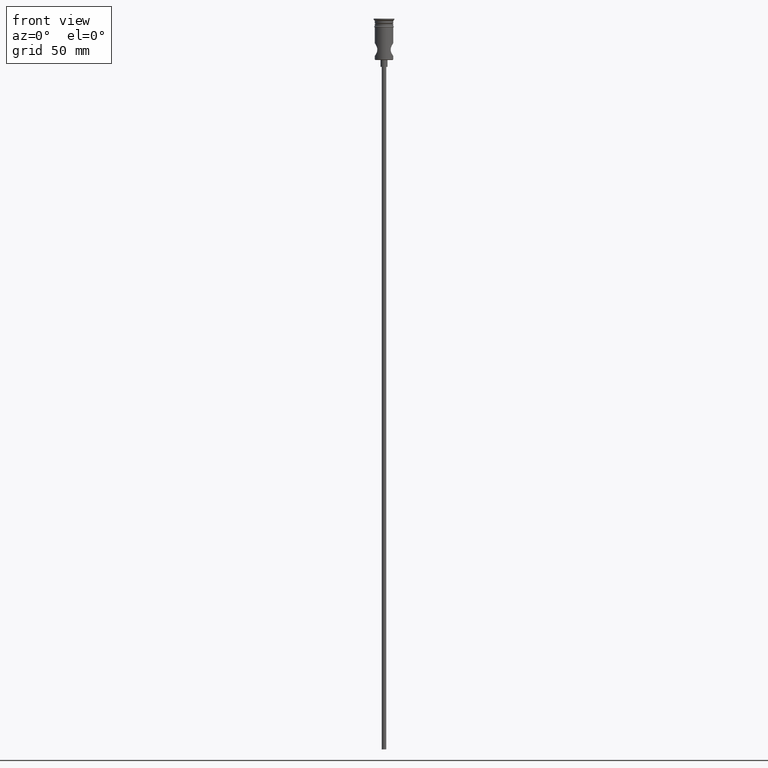
[diagram: clean part render]
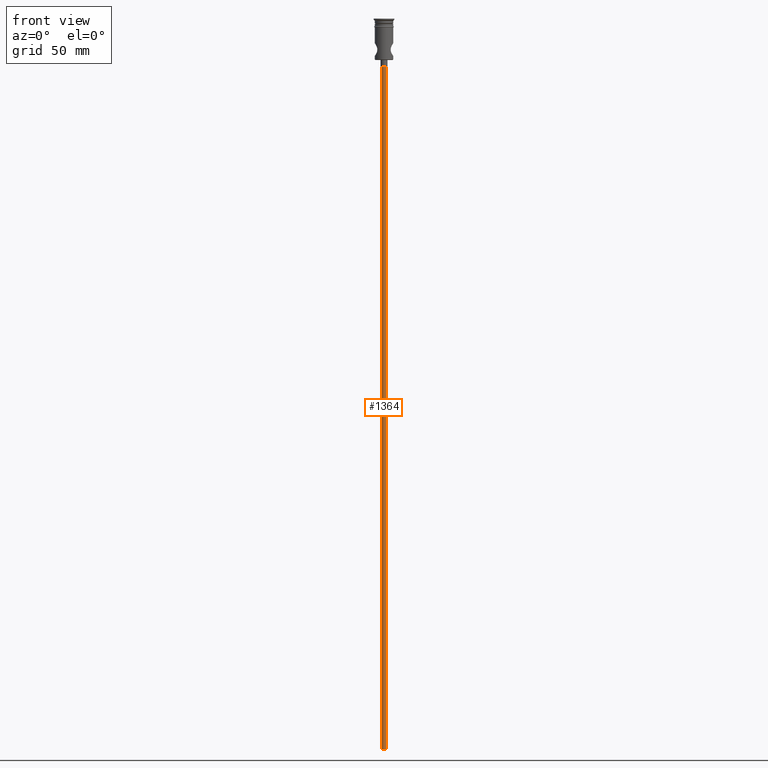
[diagram: same view with one face highlighted and labeled with its STEP entity id]
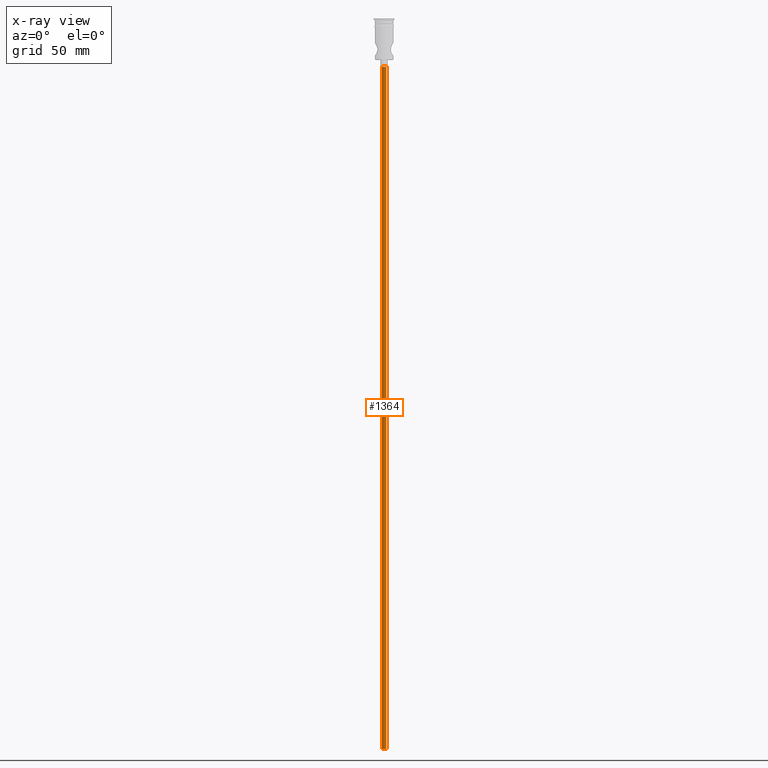
[diagram: x-ray of the same camera — body ghosted, the highlighted face saturated]
A machine part, front view. The second image highlights one B-rep face of the part: STEP entity #1364.
The next image is the same camera in x-ray: the body ghosted, the highlighted face saturated — about 0% of this face is hidden behind the body in this view.
In plain terms, the highlighted cylindrical surface (edge-blend (fillet) strip) has radius 1 mm, axis along (-0, -0, 1).
Its self-contained STEP definition (entity closure, byte-faithful):
#9 = DIRECTION ( 'NONE',  ( -0.000000000000000000, -0.000000000000000000, 1.000000000000000000 ) ) ;
#22 = EDGE_CURVE ( 'NONE', #368, #962, #27, .T. ) ;
#27 = CIRCLE ( 'NONE', #948, 0.9999999999999997780 ) ;
#64 = CARTESIAN_POINT ( 'NONE',  ( -0.9999999999999997780, 1.224646799147352961E-16, -318.0000000000000000 ) ) ;
#67 = CARTESIAN_POINT ( 'NONE',  ( -0.9999999999999997780, 1.224646799147352961E-16, -318.0000000000000000 ) ) ;
#123 = EDGE_CURVE ( 'NONE', #510, #962, #277, .T. ) ;
#147 = AXIS2_PLACEMENT_3D ( 'NONE', #207, #9, #448 ) ;
#169 = AXIS2_PLACEMENT_3D ( 'NONE', #813, #275, #1371 ) ;
#207 = CARTESIAN_POINT ( 'NONE',  ( 0.000000000000000000, 0.000000000000000000, -318.0000000000000000 ) ) ;
#212 = DIRECTION ( 'NONE',  ( -1.000000000000000000, 0.000000000000000000, 0.000000000000000000 ) ) ;
#275 = DIRECTION ( 'NONE',  ( 0.000000000000000000, 0.000000000000000000, -1.000000000000000000 ) ) ;
#277 = LINE ( 'NONE', #64, #428 ) ;
#304 = DIRECTION ( 'NONE',  ( -0.000000000000000000, -0.000000000000000000, 1.000000000000000000 ) ) ;
#321 = DIRECTION ( 'NONE',  ( -0.000000000000000000, -0.000000000000000000, 1.000000000000000000 ) ) ;
#347 = CARTESIAN_POINT ( 'NONE',  ( 0.9999999999999997780, 0.000000000000000000, -20.99999999999999645 ) ) ;
#353 = ORIENTED_EDGE ( 'NONE', *, *, #1041, .T. ) ;
#368 = VERTEX_POINT ( 'NONE', #347 ) ;
#372 = CARTESIAN_POINT ( 'NONE',  ( 0.9999999999999997780, 0.000000000000000000, -318.0000000000000000 ) ) ;
#417 = ORIENTED_EDGE ( 'NONE', *, *, #22, .T. ) ;
#428 = VECTOR ( 'NONE', #304, 1000.000000000000000 ) ;
#448 = DIRECTION ( 'NONE',  ( 1.000000000000000000, 0.000000000000000000, 0.000000000000000000 ) ) ;
#461 = EDGE_LOOP ( 'NONE', ( #627, #785, #353, #417 ) ) ;
#464 = EDGE_CURVE ( 'NONE', #988, #510, #562, .T. ) ;
#510 = VERTEX_POINT ( 'NONE', #67 ) ;
#562 = CIRCLE ( 'NONE', #169, 0.9999999999999997780 ) ;
#614 = VECTOR ( 'NONE', #321, 1000.000000000000000 ) ;
#621 = LINE ( 'NONE', #952, #614 ) ;
#627 = ORIENTED_EDGE ( 'NONE', *, *, #123, .F. ) ;
#649 = FACE_OUTER_BOUND ( 'NONE', #461, .T. ) ;
#785 = ORIENTED_EDGE ( 'NONE', *, *, #464, .F. ) ;
#813 = CARTESIAN_POINT ( 'NONE',  ( 0.000000000000000000, 0.000000000000000000, -318.0000000000000000 ) ) ;
#948 = AXIS2_PLACEMENT_3D ( 'NONE', #1097, #1203, #212 ) ;
#952 = CARTESIAN_POINT ( 'NONE',  ( 0.9999999999999997780, 0.000000000000000000, -318.0000000000000000 ) ) ;
#962 = VERTEX_POINT ( 'NONE', #1331 ) ;
#988 = VERTEX_POINT ( 'NONE', #372 ) ;
#1041 = EDGE_CURVE ( 'NONE', #988, #368, #621, .T. ) ;
#1097 = CARTESIAN_POINT ( 'NONE',  ( 0.000000000000000000, 0.000000000000000000, -20.99999999999999645 ) ) ;
#1203 = DIRECTION ( 'NONE',  ( 0.000000000000000000, 0.000000000000000000, -1.000000000000000000 ) ) ;
#1215 = CYLINDRICAL_SURFACE ( 'NONE', #147, 0.9999999999999997780 ) ;
#1331 = CARTESIAN_POINT ( 'NONE',  ( -0.9999999999999997780, 1.224646799147352961E-16, -20.99999999999999645 ) ) ;
#1364 = ADVANCED_FACE ( 'NONE', ( #649 ), #1215, .T. ) ;
#1371 = DIRECTION ( 'NONE',  ( -1.000000000000000000, 0.000000000000000000, 0.000000000000000000 ) ) ;